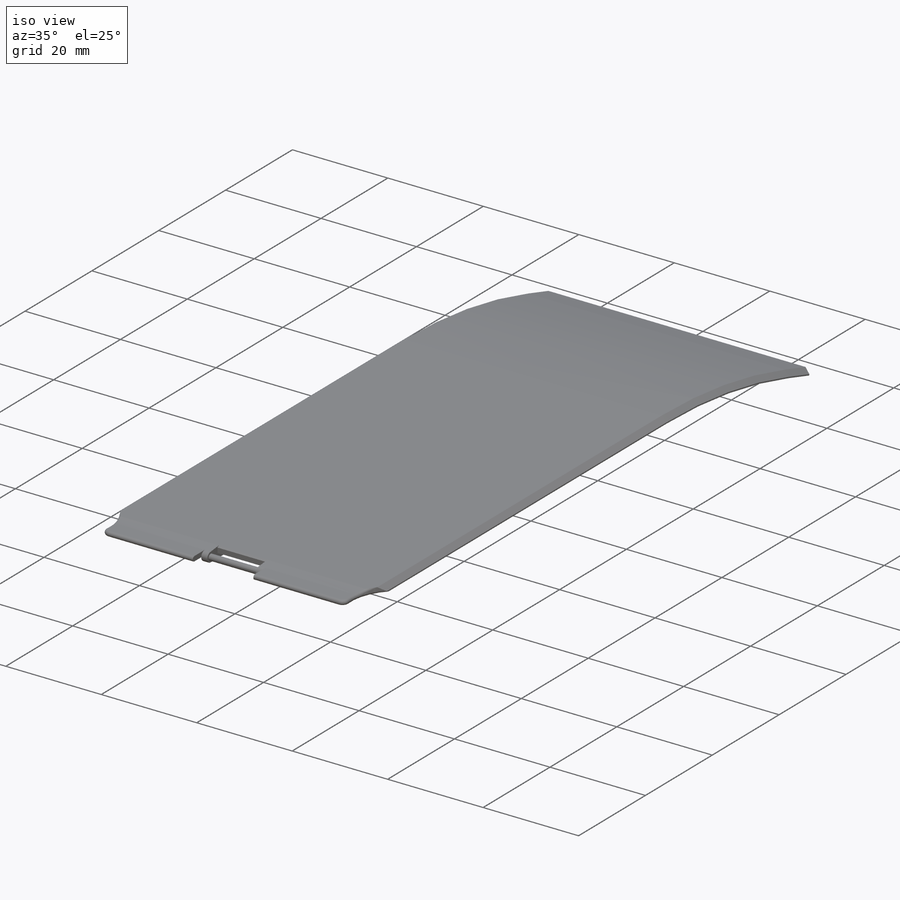
[diagram: iso view]
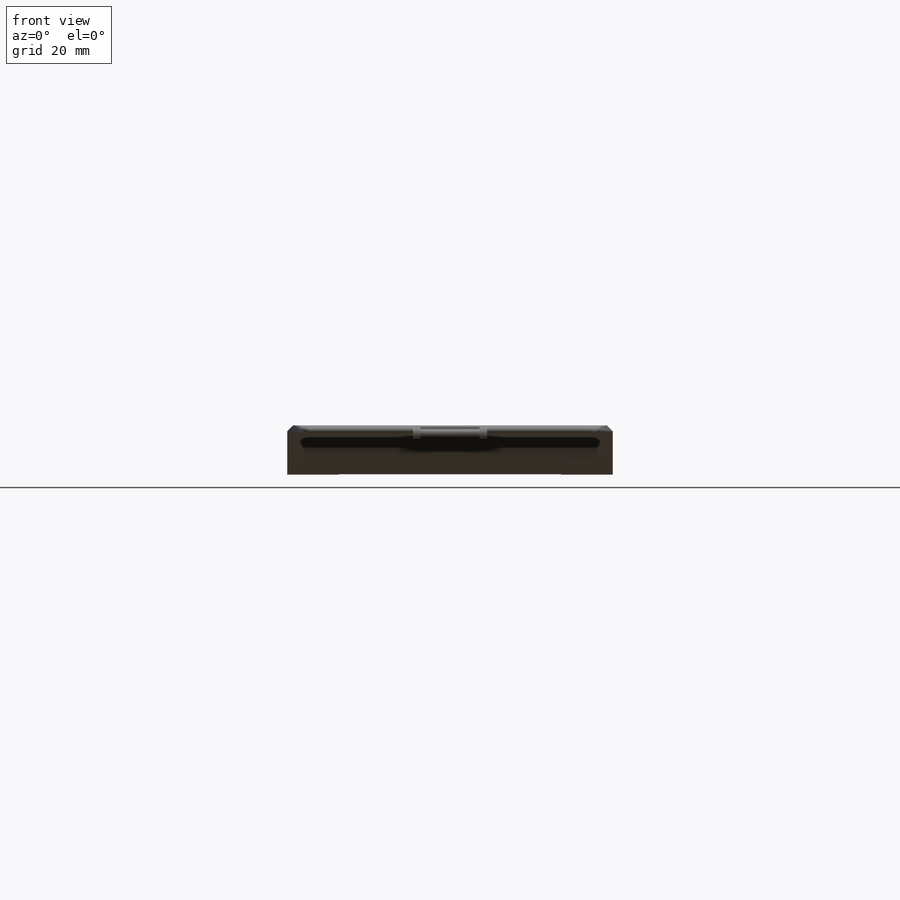
[diagram: front view]
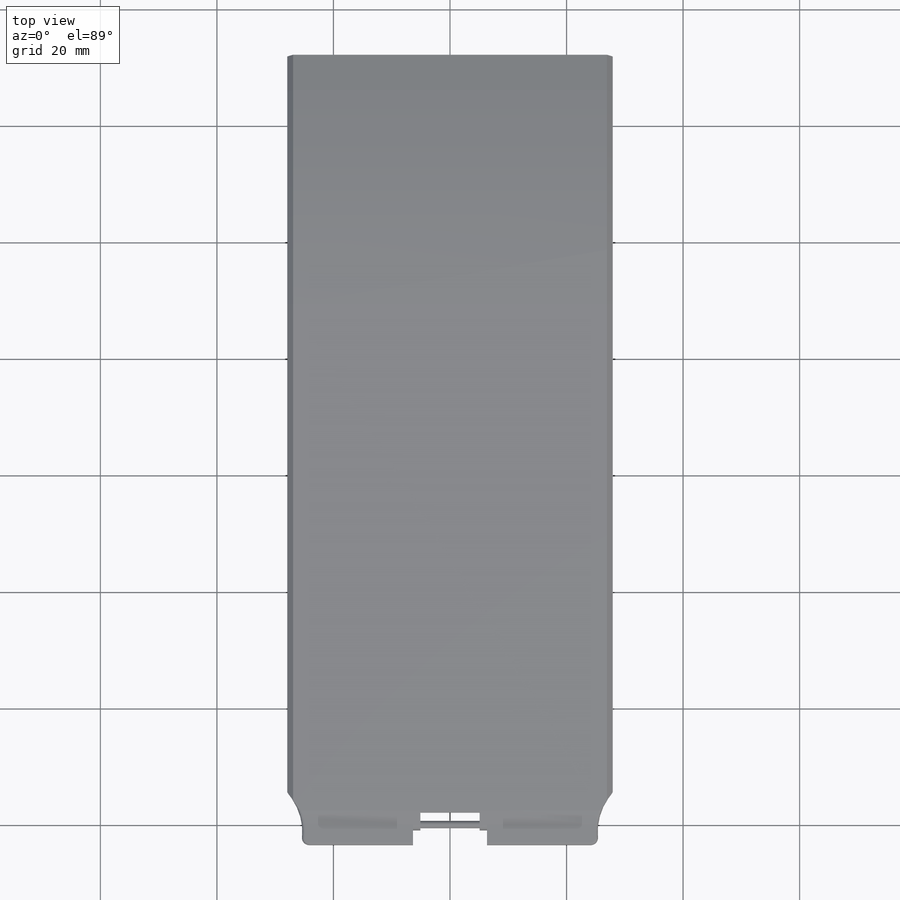
[diagram: top view]
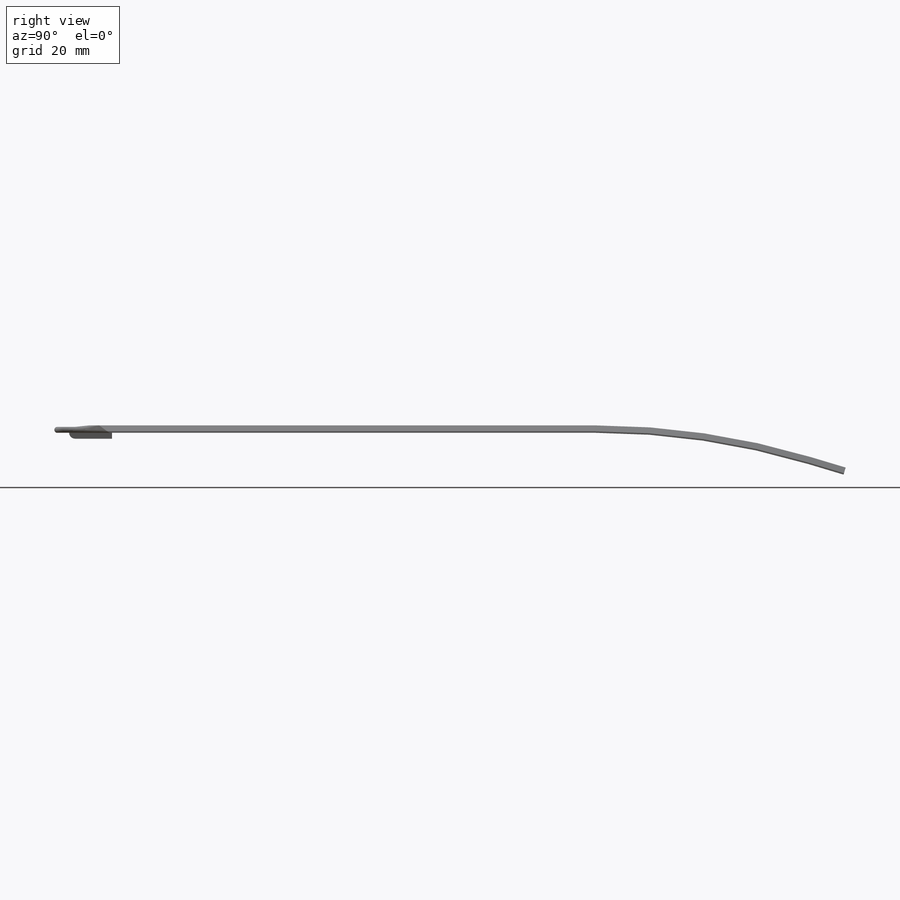
[diagram: right view]
SOLIDWORKS PART (.sldprt)
format: sldprt  version: not decoded by parser v0  size: 538,112 bytes
history: native  units: mm
features: sketch x9, extrude x5, cut_extrude x2, fillet x2, material x1, mirror x1, chamfer x1, sweep x1 (+13 scaffold rows collapsed)
feature tree (35):
  scaffold x13  (default folders/planes/origin — collapsed)
  material  "Material <not specified>"
  sketch  "Sketch1"  dims[D1=1.27mm]
  extrude  "Boss-Extrude1"  Depth=10.16mm
  sketch  "Sketch2"  dims[D1=1.016mm D2=6.35mm]
  extrude  "Boss-Extrude2"  Depth=1.27mm
  mirror  "Mirror1"
  sketch  "Sketch4"  dims[D1=1.016mm D2=2.032mm D3=0.254mm D4=0.381mm D5=89.3191mm]
  extrude  "Boss-Extrude3"  Depth=55.88mm
  chamfer  "Chamfer1"  Distance=1.016mm Angle=45deg
  sketch  "Sketch5"
  extrude  "Boss-Extrude4"  Depth=7.112mm
  sketch  "Sketch6"  dims[c1.D1=3.048mm c1.D2=1.524mm c1.D3=2.54mm c1.D4=6.985mm c1.D5=17.78mm c2.D4=7.62mm]
  cut_extrude  "Cut-Extrude1"  [1 undecoded]
  fillet  "Fillet1"  Radius=11.43mm
  fillet  "Fillet2"  Radius=0.508mm
  sketch  "Sketch7"
  sketch  "Sketch8"  dims[D1=127.0mm D2=~36.48456mm]
  sweep  "Sweep1"
  sketch  "Sketch9"
  extrude  "Boss-Extrude5"  Depth=6.35mm
  sketch  "Sketch10"  dims[D1=~0.24638mm D2=0.635mm D3=1.27mm D4=0.3175mm D5=38.1mm]
  cut_extrude  "Cut-Extrude2"  Depth=5.08mm
decode coverage: 15 of 21 modeling features carry decoded parameters
note: ~ marks probable driven/reference dimensions
note: 1 parameter value undecoded
note: suppression state not decoded; provenance and decode notes live in map.json
